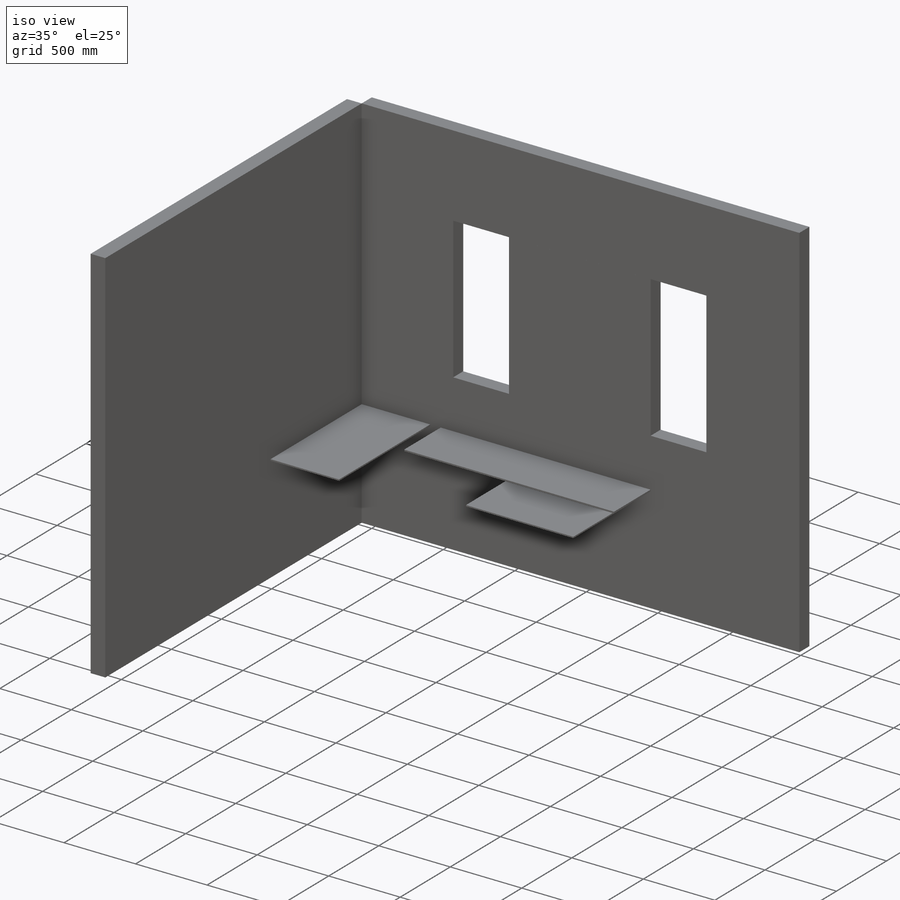
[diagram: iso view]
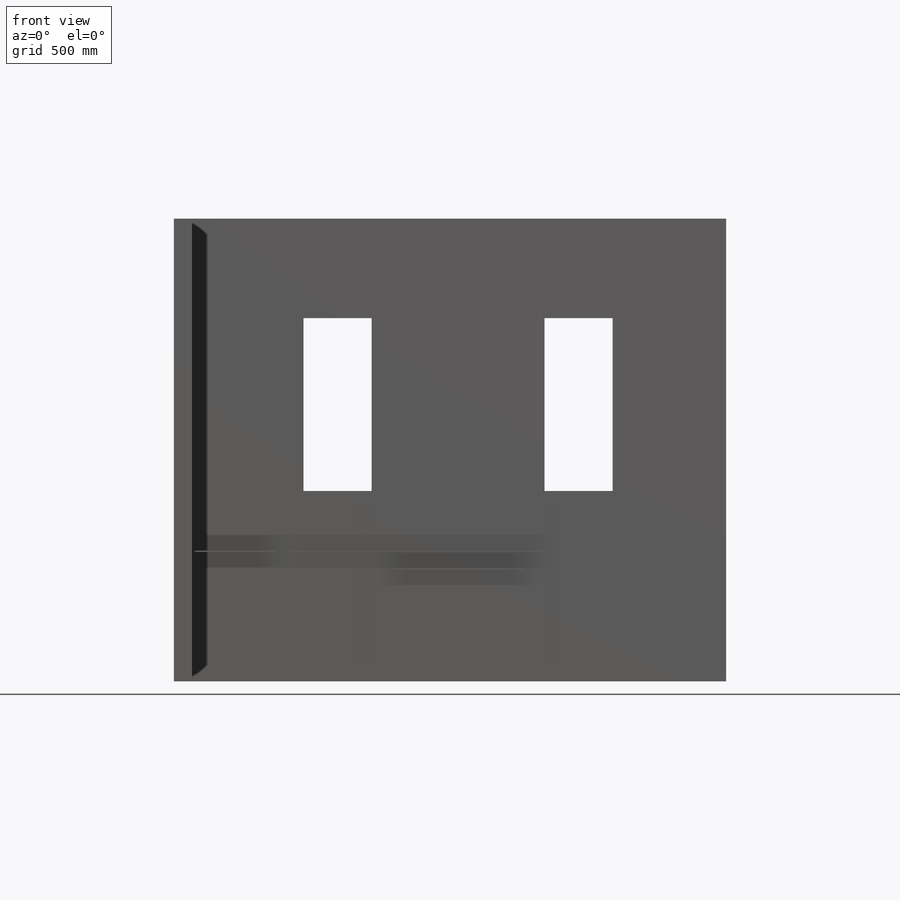
[diagram: front view]
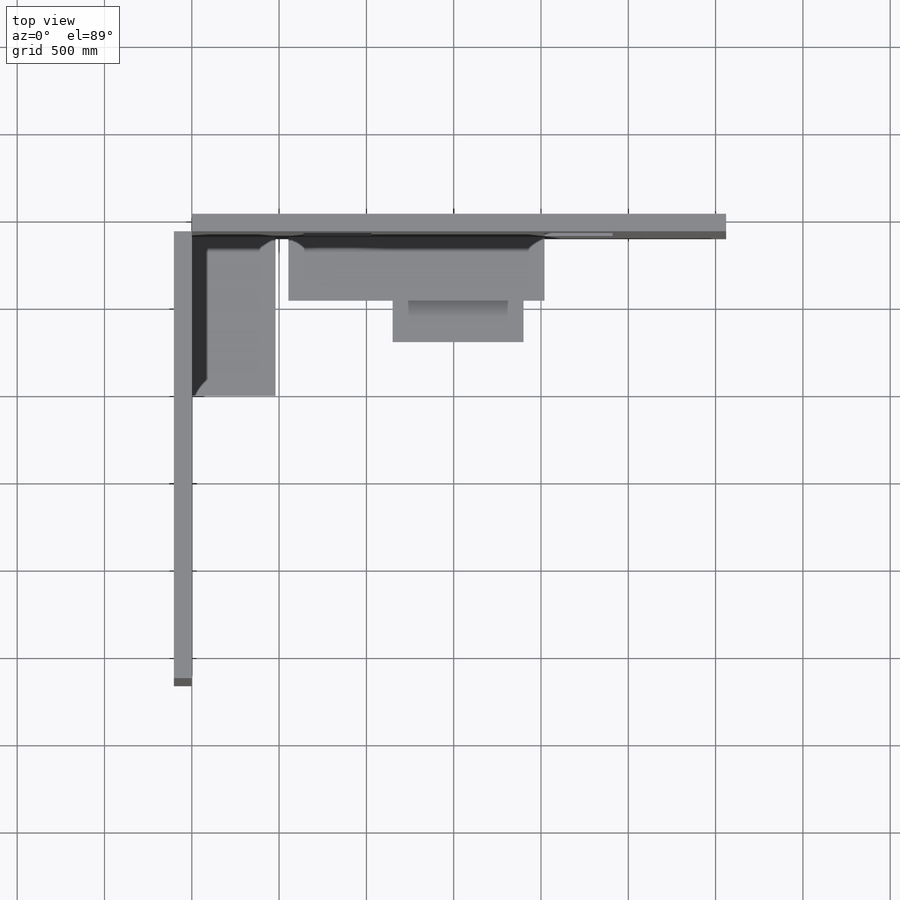
[diagram: top view]
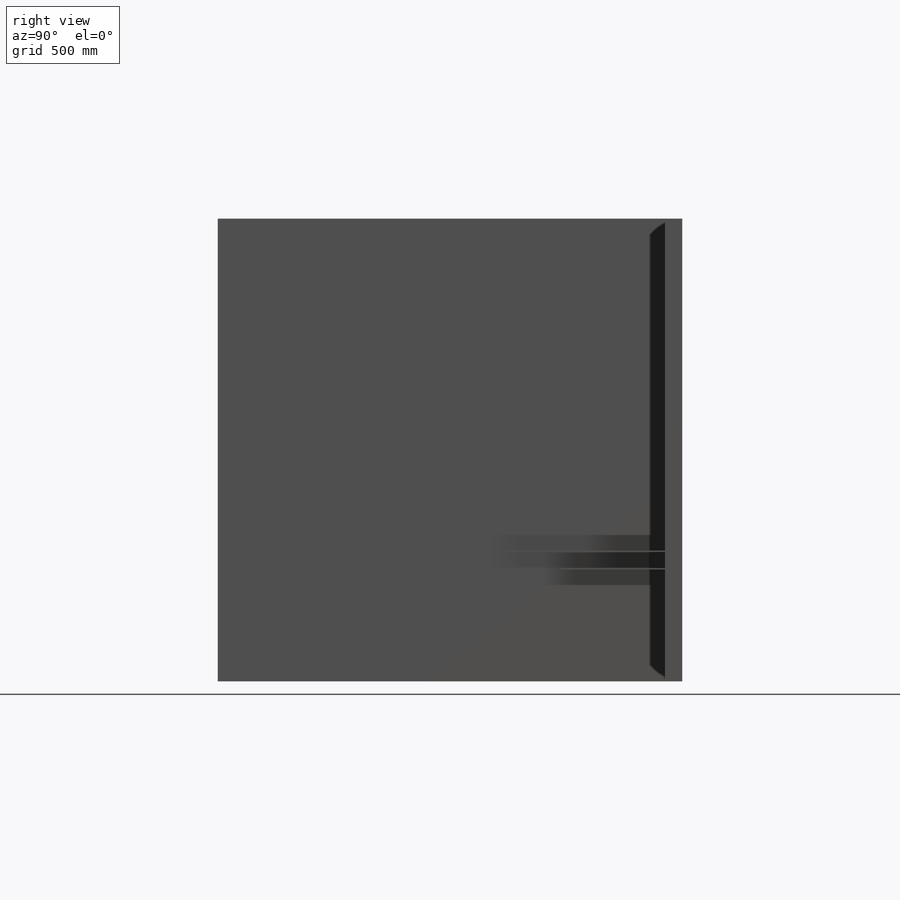
[diagram: right view]
SOLIDWORKS PART (.sldprt)
format: sldprt  version: not decoded by parser v0  size: 282,624 bytes
history: native  units: mm
features: sketch x7, extrude x6, plane x3, material x1, cut_extrude x1 (+9 scaffold rows collapsed)
feature tree (27):
  scaffold x9  (default folders/planes/origin — collapsed)
  material  "Material <não especificado>"
  plane  "Plano frontal"
  plane  "Plano superior"
  plane  "Plano direito"
  sketch  "Esboço6"  dims[D1=2650.0mm]
  extrude  "Ressalto-extrusão2"  Depth=100mm
  sketch  "Esboço7"  dims[D1=390.0mm]
  cut_extrude  "Corte-extrusão1"  Depth=749mm
  sketch  "Esboço8"
  extrude  "Ressalto-extrusão3"  Depth=2560mm
  sketch  "Esboço9"  dims[D1=10.0mm]
  extrude  "Ressalto-extrusão5"  Depth=910mm
  sketch  "Esboço12"
  extrude  "Ressalto-extrusão7"  Depth=365mm
  sketch  "Esboço13"
  extrude  "Ressalto-extrusão8"  Depth=0.01mm
  sketch  "Esboço14"  dims[D1=10.0mm]
  extrude  "Ressalto-extrusão9"  Depth=600mm
decode coverage: 11 of 14 modeling features carry decoded parameters
note: suppression state not decoded; provenance and decode notes live in map.json
